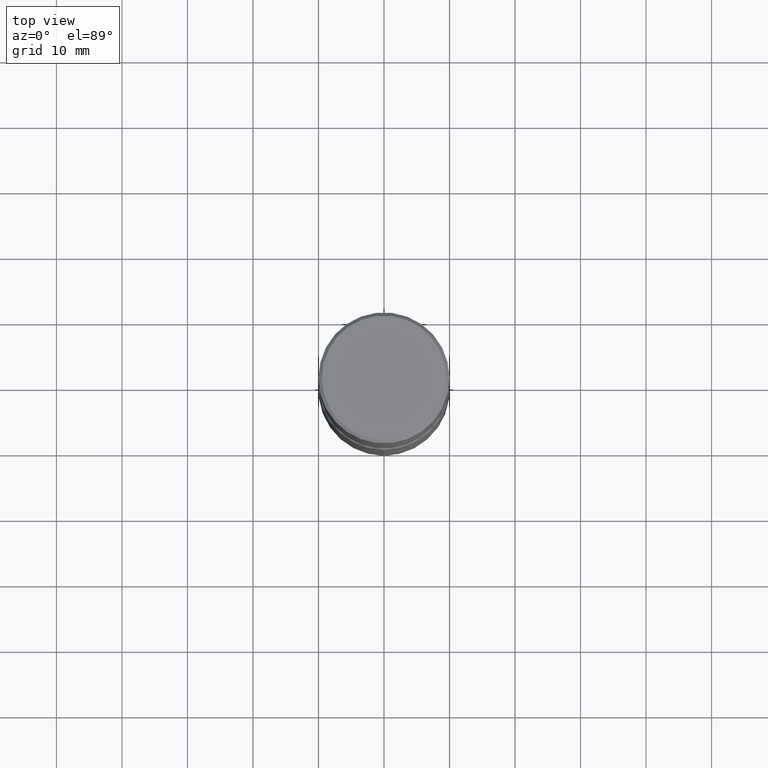
[diagram: clean part render]
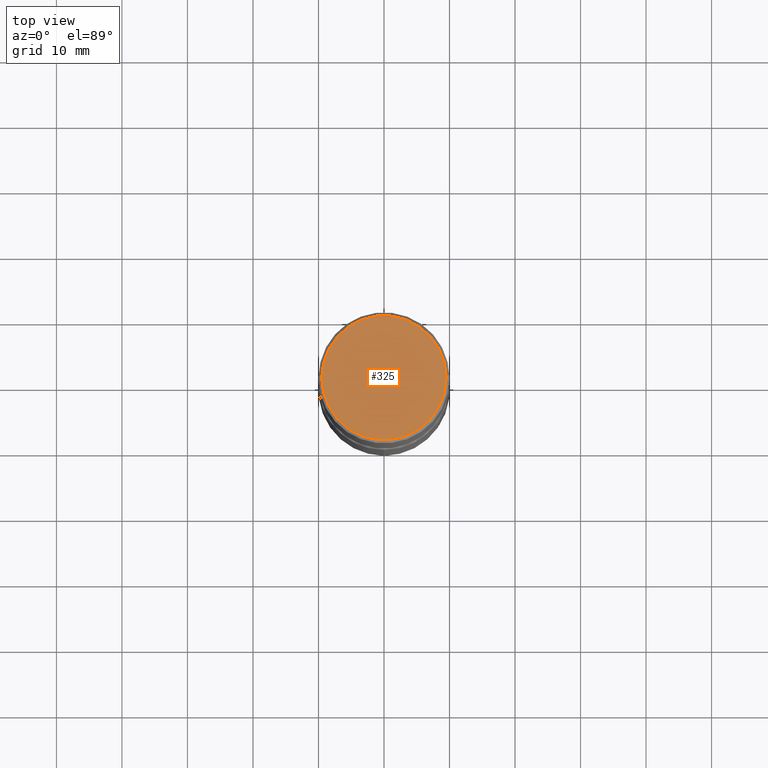
[diagram: same view with one face highlighted and labeled with its STEP entity id]
A machine part, top view. The second image highlights one B-rep face of the part: STEP entity #325.
In plain terms, the highlighted planar face has unit normal (0, -0, -1).
Its self-contained STEP definition (entity closure, byte-faithful):
#25 = VERTEX_POINT ( 'NONE', #336 ) ;
#55 = CARTESIAN_POINT ( 'NONE',  ( 2.609533152651356226E-15, 0.3736999999999998101, -1.300498063835582617E-15 ) ) ;
#56 = ORIENTED_EDGE ( 'NONE', *, *, #351, .T. ) ;
#91 = DIRECTION ( 'NONE',  ( -1.000000000000000000, 6.982962677686265922E-15, -4.876176775795935793E-29 ) ) ;
#111 = EDGE_LOOP ( 'NONE', ( #56, #188 ) ) ;
#143 = DIRECTION ( 'NONE',  ( 1.000000000000000000, -6.982962677686266711E-15, 4.876212485538977921E-29 ) ) ;
#164 = AXIS2_PLACEMENT_3D ( 'NONE', #55, #172, #91 ) ;
#172 = DIRECTION ( 'NONE',  ( 2.438088387897960049E-29, -3.491481338843145188E-15, -1.000000000000000000 ) ) ;
#179 = AXIS2_PLACEMENT_3D ( 'NONE', #328, #288, #492 ) ;
#188 = ORIENTED_EDGE ( 'NONE', *, *, #196, .T. ) ;
#196 = EDGE_CURVE ( 'NONE', #389, #25, #213, .T. ) ;
#213 = CIRCLE ( 'NONE', #369, 0.3736999999999998101 ) ;
#240 = FACE_OUTER_BOUND ( 'NONE', #111, .T. ) ;
#288 = DIRECTION ( 'NONE',  ( -2.445468806185136597E-29, 3.491481338843145583E-15, 1.000000000000000000 ) ) ;
#294 = CARTESIAN_POINT ( 'NONE',  ( 0.3736999999999998101, -2.667287895133367570E-15, 8.537024980219274507E-18 ) ) ;
#314 = CIRCLE ( 'NONE', #179, 0.3736999999999998101 ) ;
#325 = ADVANCED_FACE ( 'NONE', ( #240 ), #326, .F. ) ;
#326 = PLANE ( 'NONE',  #164 ) ;
#328 = CARTESIAN_POINT ( 'NONE',  ( -2.087702828670439639E-46, 2.980686340760894400E-32, 8.537024980200822558E-18 ) ) ;
#336 = CARTESIAN_POINT ( 'NONE',  ( -0.3736999999999998101, 2.644447966039787875E-15, 8.537024980182450727E-18 ) ) ;
#340 = CARTESIAN_POINT ( 'NONE',  ( -2.087702828670439639E-46, 2.980686340760894400E-32, 8.537024980200822558E-18 ) ) ;
#351 = EDGE_CURVE ( 'NONE', #25, #389, #314, .T. ) ;
#369 = AXIS2_PLACEMENT_3D ( 'NONE', #340, #458, #143 ) ;
#389 = VERTEX_POINT ( 'NONE', #294 ) ;
#458 = DIRECTION ( 'NONE',  ( -2.445468806185136597E-29, 3.491481338843145583E-15, 1.000000000000000000 ) ) ;
#492 = DIRECTION ( 'NONE',  ( 1.000000000000000000, -6.982962677686266711E-15, 4.876212485538977921E-29 ) ) ;